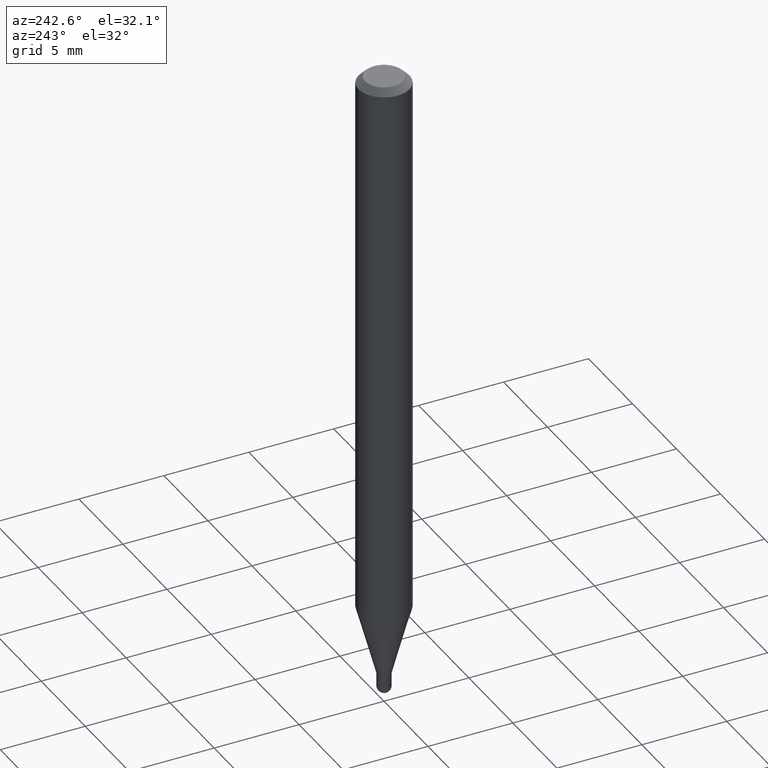
[diagram: clean part render]
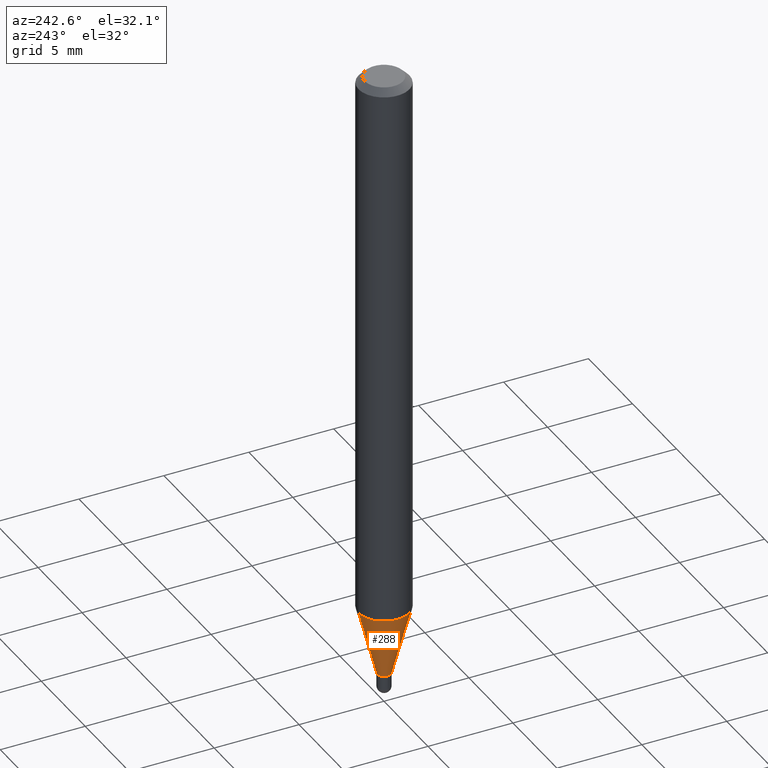
[diagram: same view with one face highlighted and labeled with its STEP entity id]
A machine part, auxiliary view. The second image highlights one B-rep face of the part: STEP entity #288.
In plain terms, the highlighted conical surface has half-angle 15 deg.
Its self-contained STEP definition (entity closure, byte-faithful):
#15 = AXIS2_PLACEMENT_3D ( 'NONE', #464, #228, #71 ) ;
#23 = VECTOR ( 'NONE', #201, 39.37007874015748143 ) ;
#44 = AXIS2_PLACEMENT_3D ( 'NONE', #428, #506, #195 ) ;
#50 = ORIENTED_EDGE ( 'NONE', *, *, #257, .F. ) ;
#52 = EDGE_CURVE ( 'NONE', #230, #225, #331, .T. ) ;
#71 = DIRECTION ( 'NONE',  ( -6.982962677686265133E-15, -1.000000000000000000, 0.000000000000000000 ) ) ;
#109 = CIRCLE ( 'NONE', #44, 0.05904999999999999832 ) ;
#112 = FACE_OUTER_BOUND ( 'NONE', #223, .T. ) ;
#118 = CARTESIAN_POINT ( 'NONE',  ( 1.119104808822486904E-16, 0.01574999999999459124, -1.448899999999999855 ) ) ;
#138 = LINE ( 'NONE', #118, #23 ) ;
#142 = VERTEX_POINT ( 'NONE', #468 ) ;
#148 = VERTEX_POINT ( 'NONE', #156 ) ;
#156 = CARTESIAN_POINT ( 'NONE',  ( 4.195754854663704558E-16, 0.05904999999999550192, -1.287302200032271582 ) ) ;
#170 = ORIENTED_EDGE ( 'NONE', *, *, #370, .T. ) ;
#195 = DIRECTION ( 'NONE',  ( -6.982962677686265922E-15, -1.000000000000000000, 4.626330217890369336E-15 ) ) ;
#201 = DIRECTION ( 'NONE',  ( 1.839019923739648830E-15, 0.2588190451025317862, 0.9659258262890653146 ) ) ;
#203 = EDGE_CURVE ( 'NONE', #148, #225, #109, .T. ) ;
#223 = EDGE_LOOP ( 'NONE', ( #50, #170, #451, #348 ) ) ;
#225 = VERTEX_POINT ( 'NONE', #285 ) ;
#228 = DIRECTION ( 'NONE',  ( -2.445444728343672060E-29, 3.491515819682548515E-15, 1.000000000000000000 ) ) ;
#230 = VERTEX_POINT ( 'NONE', #318 ) ;
#257 = EDGE_CURVE ( 'NONE', #142, #148, #138, .T. ) ;
#264 = CARTESIAN_POINT ( 'NONE',  ( 3.543204866897145919E-29, -5.058857271138045478E-15, -1.448899999999999855 ) ) ;
#269 = AXIS2_PLACEMENT_3D ( 'NONE', #264, #414, #271 ) ;
#271 = DIRECTION ( 'NONE',  ( -6.982962677686265133E-15, -1.000000000000000000, 0.000000000000000000 ) ) ;
#285 = CARTESIAN_POINT ( 'NONE',  ( -4.123439461173426755E-16, -0.05905000000000450860, -1.287302200032271138 ) ) ;
#288 = ADVANCED_FACE ( 'NONE', ( #112 ), #391, .T. ) ;
#318 = CARTESIAN_POINT ( 'NONE',  ( -1.099816621735208038E-16, -0.01575000000000470468, -1.448899999999999855 ) ) ;
#327 = DIRECTION ( 'NONE',  ( -1.807323732225377865E-15, -0.2588190451025250138, 0.9659258262890670910 ) ) ;
#331 = LINE ( 'NONE', #361, #399 ) ;
#348 = ORIENTED_EDGE ( 'NONE', *, *, #203, .F. ) ;
#349 = CIRCLE ( 'NONE', #269, 0.01574999999999964970 ) ;
#361 = CARTESIAN_POINT ( 'NONE',  ( -1.099816621735208038E-16, -0.01575000000000470468, -1.448899999999999855 ) ) ;
#370 = EDGE_CURVE ( 'NONE', #142, #230, #349, .T. ) ;
#391 = CONICAL_SURFACE ( 'NONE', #15, 0.01574999999999964970, 0.2617993877991573459 ) ;
#399 = VECTOR ( 'NONE', #327, 39.37007874015748854 ) ;
#414 = DIRECTION ( 'NONE',  ( -2.445444728343672060E-29, 3.491515819682548515E-15, 1.000000000000000000 ) ) ;
#428 = CARTESIAN_POINT ( 'NONE',  ( 3.148026378854129597E-29, -4.494635996124823289E-15, -1.287302200032271360 ) ) ;
#451 = ORIENTED_EDGE ( 'NONE', *, *, #52, .T. ) ;
#464 = CARTESIAN_POINT ( 'NONE',  ( 3.543204866897145919E-29, -5.058857271138045478E-15, -1.448899999999999855 ) ) ;
#468 = CARTESIAN_POINT ( 'NONE',  ( 2.657429831743097333E-16, 0.01574999999999459124, -1.448899999999999855 ) ) ;
#506 = DIRECTION ( 'NONE',  ( -2.445444728343672060E-29, 3.491515819682548515E-15, 1.000000000000000000 ) ) ;